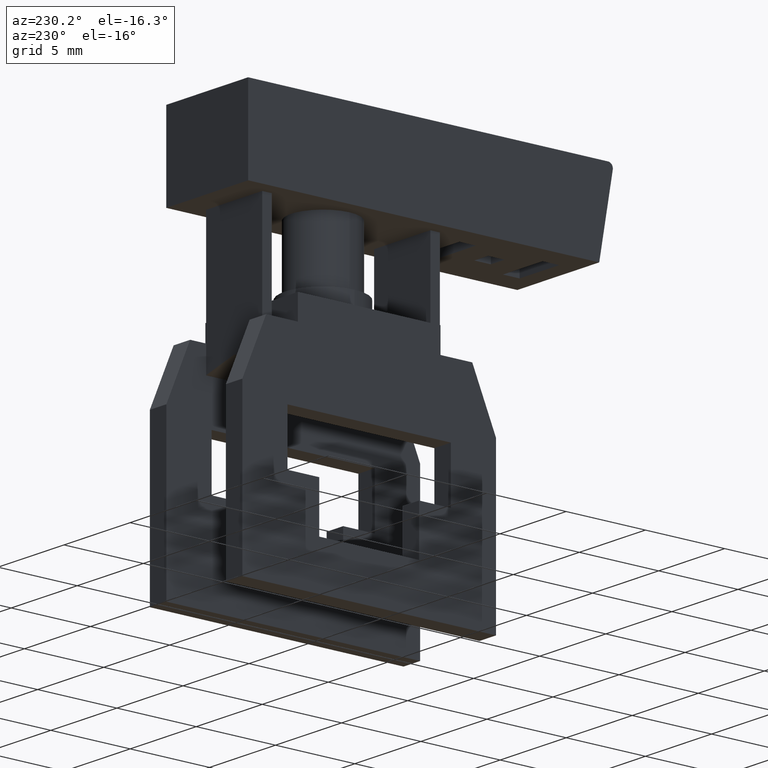
[diagram: clean part render]
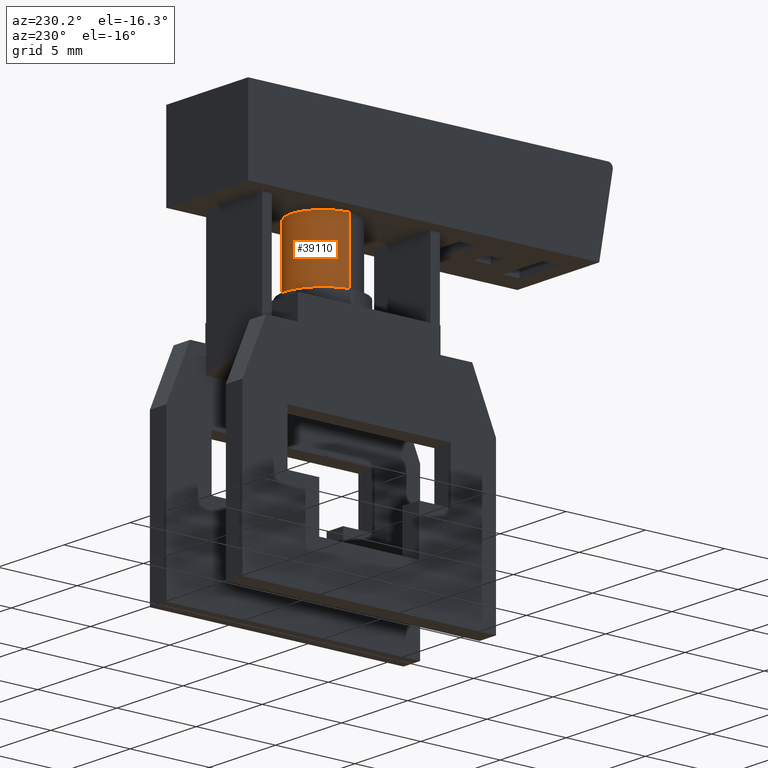
[diagram: same view with one face highlighted and labeled with its STEP entity id]
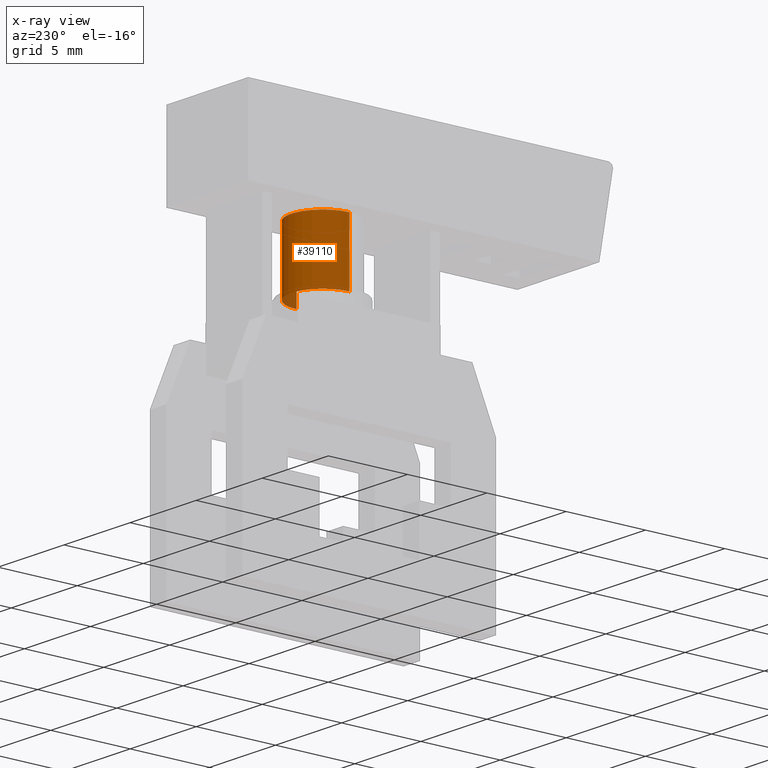
[diagram: x-ray of the same camera — body ghosted, the highlighted face saturated]
A machine part, auxiliary view. The second image highlights one B-rep face of the part: STEP entity #39110.
The next image is the same camera in x-ray: the body ghosted, the highlighted face saturated — about 3% of this face is hidden behind the body in this view.
In plain terms, the highlighted cylindrical surface (partial cylindrical patch) has radius 2 mm, axis along (-0, 0, 1).
Its self-contained STEP definition (entity closure, byte-faithful):
#13810=CARTESIAN_POINT('',(-3.5,25.7,8.));
#13820=DIRECTION('',(0.,1.,0.));
#13830=DIRECTION('',(1.,0.,0.));
#13840=AXIS2_PLACEMENT_3D('',#13810,#13820,#13830);
#13850=CIRCLE('',#13840,2.);
#13860=CARTESIAN_POINT('',(-1.5,25.7,8.));
#13870=VERTEX_POINT('',#13860);
#13880=CARTESIAN_POINT('',(-5.5,25.7,8.));
#13890=VERTEX_POINT('',#13880);
#13900=EDGE_CURVE('',#13870,#13890,#13850,.T.);
#14500=CARTESIAN_POINT('',(-5.5,20.05,8.));
#14510=DIRECTION('',(0.,1.,0.));
#14520=VECTOR('',#14510,1.);
#14530=LINE('',#14500,#14520);
#14540=CARTESIAN_POINT('',(-5.5,21.7,8.));
#14550=VERTEX_POINT('',#14540);
#14560=EDGE_CURVE('',#14550,#13890,#14530,.T.);
#14590=CARTESIAN_POINT('',(-1.5,20.05,8.));
#14600=DIRECTION('',(0.,1.,0.));
#14610=VECTOR('',#14600,1.);
#14620=LINE('',#14590,#14610);
#14630=CARTESIAN_POINT('',(-1.5,21.7,8.));
#14640=VERTEX_POINT('',#14630);
#14650=EDGE_CURVE('',#14640,#13870,#14620,.T.);
#14670=CARTESIAN_POINT('',(-3.5,21.7,8.));
#14680=DIRECTION('',(0.,1.,0.));
#14690=DIRECTION('',(1.,0.,0.));
#14700=AXIS2_PLACEMENT_3D('',#14670,#14680,#14690);
#14710=CIRCLE('',#14700,2.);
#14890=EDGE_CURVE('',#14640,#14550,#14710,.T.);
#39000=CARTESIAN_POINT('',(-3.5,20.05,8.));
#39010=DIRECTION('',(0.,1.,0.));
#39020=DIRECTION('',(1.,0.,0.));
#39030=AXIS2_PLACEMENT_3D('',#39000,#39010,#39020);
#39040=CYLINDRICAL_SURFACE('',#39030,2.);
#39050=ORIENTED_EDGE('',*,*,#13900,.F.);
#39060=ORIENTED_EDGE('',*,*,#14560,.T.);
#39070=ORIENTED_EDGE('',*,*,#14890,.T.);
#39080=ORIENTED_EDGE('',*,*,#14650,.F.);
#39090=EDGE_LOOP('',(#39080,#39070,#39060,#39050));
#39100=FACE_OUTER_BOUND('',#39090,.T.);
#39110=ADVANCED_FACE('',(#39100),#39040,.T.);